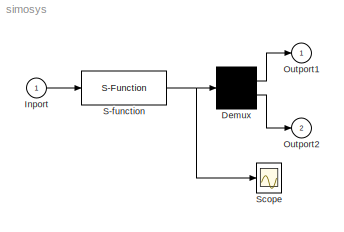
MODEL simosys
KIND model
CONFIG AbsTol = 1e-6
CONFIG FixedStep = auto
CONFIG MaxStep = 10
CONFIG RelTol = 1e-3
CONFIG Solver = ode45
CONFIG StartTime = 0.0
CONFIG StopTime = 20
BLOCK [Demux] Demux
  Outputs = 2
  Ports = [1, 2, 0, 0, 0]
BLOCK [Inport] Inport
  Port = 1
  PortWidth = -1
  SampleTime = -1
BLOCK [Outport] Outport1
  InitialOutput = 0
  OutputWhenDisabled = held
  Port = 1
BLOCK [Outport] Outport2
  InitialOutput = 0
  OutputWhenDisabled = held
  Port = 2
BLOCK [S-Function] S-function
  FunctionName = simom
  PortCounts = []
  Ports = [1, 1, 0, 0, 0]
  SFunctionModules = ''
BLOCK [Scope] Scope
  Decimation = 1
  Floating = off
  Grid = on
  LimitMaxRows = on
  MaxRows = 5000
  Ports = [1, 0, 0, 0, 0]
  SampleInput = off
  SampleTime = 0
  SaveName = ScopeData
  SaveToWorkspace = off
  TickLabels = on
  TimeRange = 20
  YMax = 6
  YMin = -2
  ZoomMode = on
LINE Demux:1 -> Outport1:1
LINE Demux:2 -> Outport2:1
LINE Inport:1 -> S-function:1
NET S-function:1 -> Demux:1, Scope:1
note: NET lines group one-source signal fan-out (src -> all destinations, sorted); 1:1 wires keep LINE
